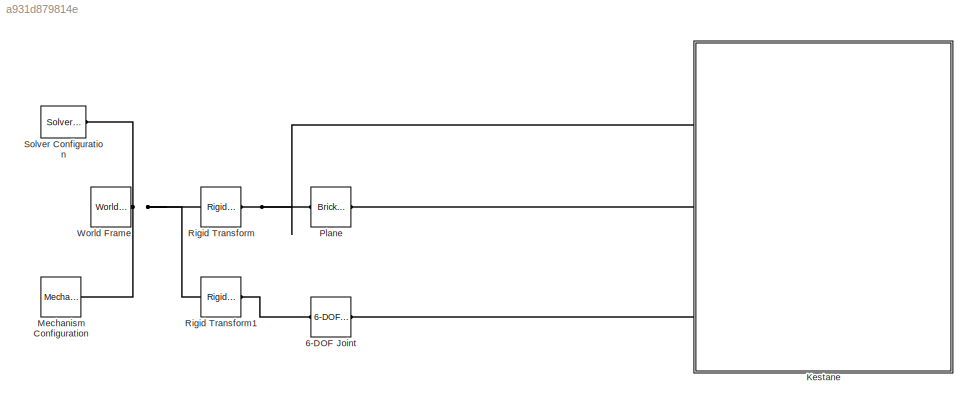
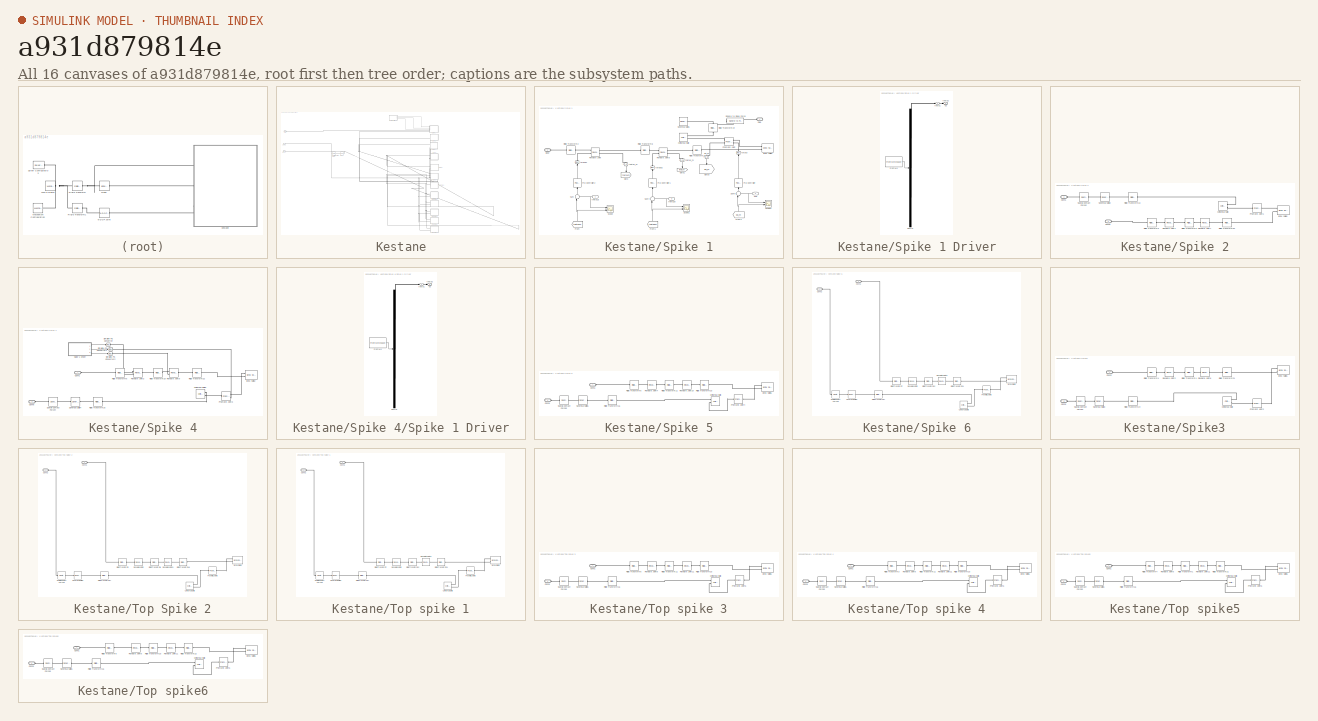
[diagram: thumbnail index - all 16 canvases of the model, root first then tree order]
MODEL slx_a931d879814e
KIND model
CONFIG AbsTol = auto
CONFIG EnableMultiTasking = off
CONFIG FixedStep = auto
CONFIG MaxStep = auto
CONFIG MinStep = auto
CONFIG RelTol = 1e-3
CONFIG SampleTimeConstraint = Unconstrained
CONFIG SolverName = VariableStepAuto
CONFIG StartTime = 0.0
CONFIG StopTime = 70
BLOCK [Reference] 6-DOF Joint  REF=sm_lib/Joints/6-DOF Joint
  Ports = [0, 0, 0, 0, 0, 1, 1]
  SourceBlock = sm_lib/Joints/6-DOF Joint
  SourceProductBaseCode = MS
  SourceType = 6-DOF Joint
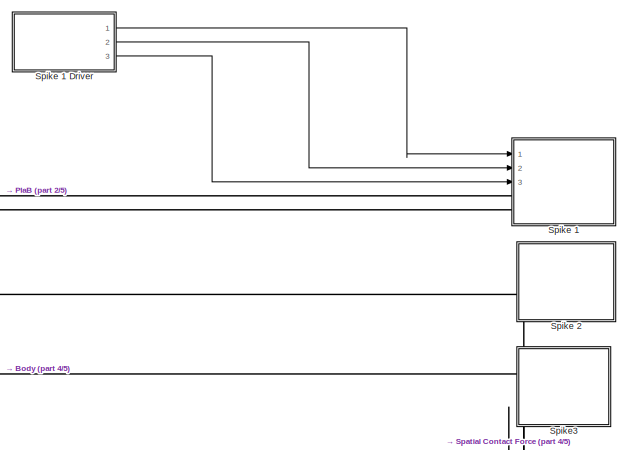
[diagram: Kestane - part 1/5, top center region]
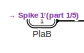
[diagram: Kestane - part 2/5, top left region]
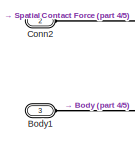
[diagram: Kestane - part 3/5, top left region]
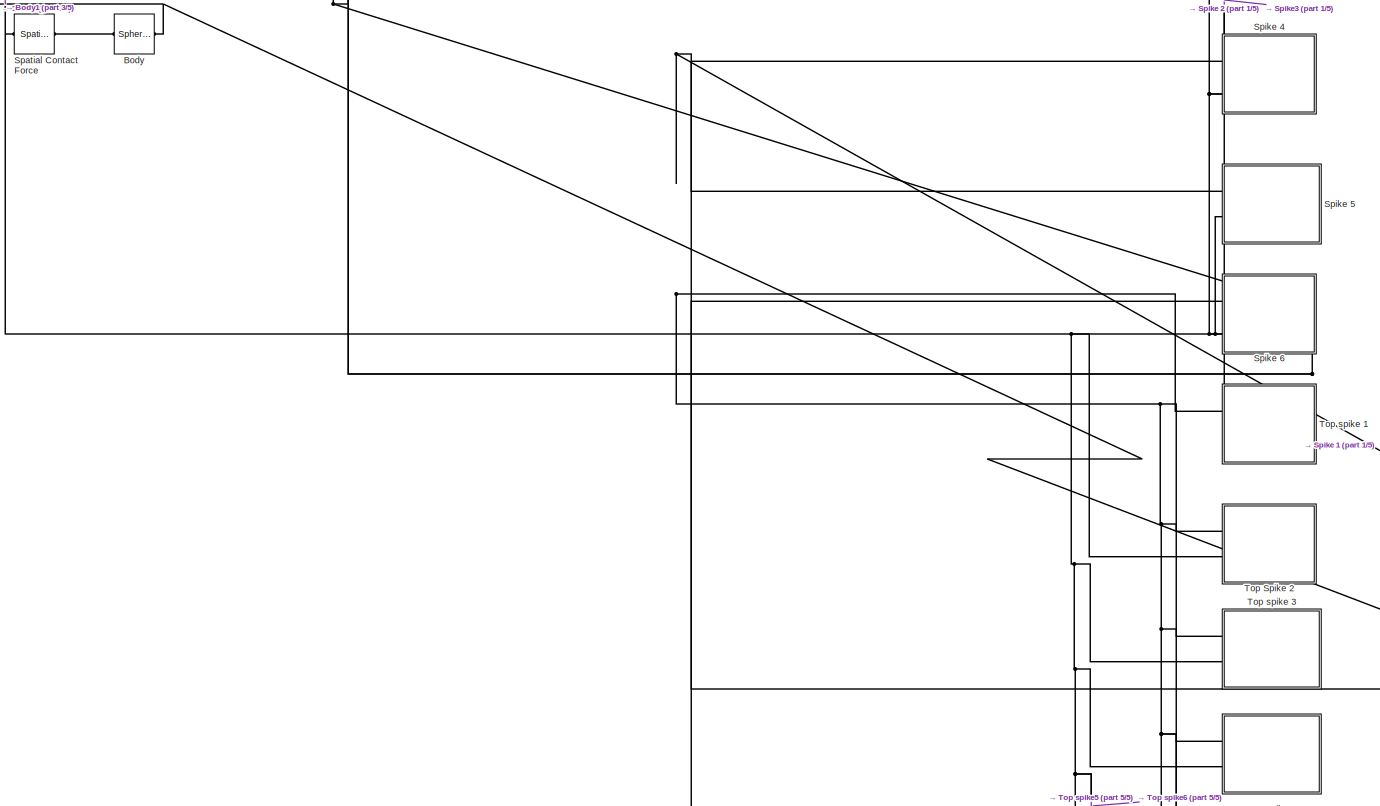
[diagram: Kestane - part 4/5, central region]
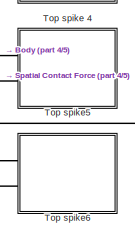
[diagram: Kestane - part 5/5, bottom center region]
BLOCK [SubSystem] Kestane
  Ports = [0, 0, 0, 0, 0, 3]
  RequestExecContextInheritance = off
BLOCK [Reference] Kestane/Body  REF=sm_lib/Body Elements/Spherical Solid
  Ports = [0, 0, 0, 0, 0, 1, 1]
  SourceBlock = sm_lib/Body Elements/Spherical Solid
  SourceProductBaseCode = MS
  SourceType = Spherical Solid
BLOCK [PMIOPort] Kestane/Body1
  Port = 3
  Side = Left
BLOCK [PMIOPort] Kestane/Conn2
  Port = 2
  Side = Left
BLOCK [PMIOPort] Kestane/PlaB
  Side = Left
BLOCK [Reference] Kestane/Spatial Contact Force  REF=sm_lib/Forces and
Torques/Spatial
Contact Force
  Ports = [0, 0, 0, 0, 0, 1, 1]
  SourceBlock = sm_lib/Forces and\nTorques/Spatial\nContact Force
  SourceProductBaseCode = MS
  SourceType = Spatial\nContact Force
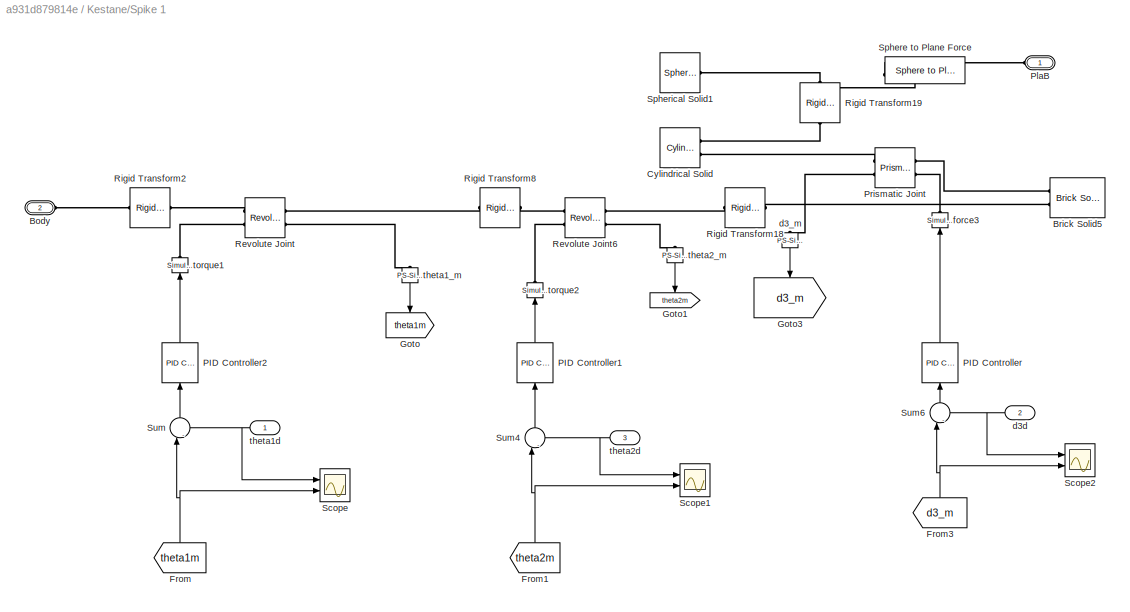
BLOCK [SubSystem] Kestane/Spike 1
  Ports = [3, 0, 0, 0, 0, 2]
  RequestExecContextInheritance = off
BLOCK [SubSystem] Kestane/Spike 1 Driver
  ClipboardFcn = sigbuilder_block('clipboard');
  CloseFcn = sigbuilder_block('close');
  ContinueFcn = sigbuilder_block('continue');
  CopyFcn = sigbuilder_block('copy');
  DeleteFcn = sigbuilder_block('delete');
  LoadFcn = sigbuilder_block('load');
  MaskHideContents = on
  ModelCloseFcn = sigbuilder_block('modelClose');
  NameChangeFcn = sigbuilder_block('namechange');
  OpenFcn = sigbuilder_block('open',[5.4 17.4 1141.2 522.6 ]);
  PauseFcn = sigbuilder_block('pause');
  Ports = [0, 3]
  PreSaveFcn = sigbuilder_block('preSave');
  RequestExecContextInheritance = off
  StartFcn = sigbuilder_block('start');
  StopFcn = sigbuilder_block('stop');
  Tag = STV Subsys
BLOCK [Demux] Kestane/Spike 1 Driver/Demux
  DisplayOption = none
  Outputs = 3
  Ports = [1, 3]
  Tag = STV Demux
BLOCK [FromWorkspace] Kestane/Spike 1 Driver/FromWs
  Tag = STV FromWs
  VariableName = tuvar
BLOCK [Outport] Kestane/Spike 1 Driver/d3
  Port = 2
  Tag = STV Outport
BLOCK [Outport] Kestane/Spike 1 Driver/theta1
  Tag = STV Outport
BLOCK [Outport] Kestane/Spike 1 Driver/theta2
  Port = 3
  Tag = STV Outport
BLOCK [PMIOPort] Kestane/Spike 1/Body
  Port = 2
  Side = Left
BLOCK [Reference] Kestane/Spike 1/Brick Solid5  REF=sm_lib/Body Elements/Brick Solid
  Ports = [0, 0, 0, 0, 0, 2, 2]
  SourceBlock = sm_lib/Body Elements/Brick Solid
  SourceProductBaseCode = MS
  SourceType = Brick Solid
BLOCK [Reference] Kestane/Spike 1/Cylindrical Solid  REF=sm_lib/Body Elements/Cylindrical Solid
  NameLocation = top
  Ports = [0, 0, 0, 0, 0, 2, 2]
  SourceBlock = sm_lib/Body Elements/Cylindrical Solid
  SourceProductBaseCode = MS
  SourceType = Cylindrical Solid
BLOCK [From] Kestane/Spike 1/From
  GotoTag = theta1m
  NameLocation = right
BLOCK [From] Kestane/Spike 1/From1
  GotoTag = theta2m
  NameLocation = right
BLOCK [From] Kestane/Spike 1/From3
  GotoTag = d3_m
  NameLocation = right
BLOCK [Goto] Kestane/Spike 1/Goto
  GotoTag = theta1m
  NameLocation = left
BLOCK [Goto] Kestane/Spike 1/Goto1
  GotoTag = theta2m
  NameLocation = left
BLOCK [Goto] Kestane/Spike 1/Goto3
  GotoTag = d3_m
  NameLocation = left
BLOCK [Reference] Kestane/Spike 1/PID Controller  REF=slpidlib/PID Controller
  NameLocation = right
  Ports = [1, 1]
  SourceBlock = slpidlib/PID Controller
  SourceProductBaseCode = SL
  SourceType = PID 1dof
BLOCK [Reference] Kestane/Spike 1/PID Controller1  REF=slpidlib/PID Controller
  NameLocation = right
  Ports = [1, 1]
  SourceBlock = slpidlib/PID Controller
  SourceProductBaseCode = SL
  SourceType = PID 1dof
BLOCK [Reference] Kestane/Spike 1/PID Controller2  REF=slpidlib/PID Controller
  NameLocation = right
  Ports = [1, 1]
  SourceBlock = slpidlib/PID Controller
  SourceProductBaseCode = SL
  SourceType = PID 1dof
BLOCK [PMIOPort] Kestane/Spike 1/PlaB
  Side = Left
BLOCK [Reference] Kestane/Spike 1/Prismatic Joint  REF=sm_lib/Joints/Prismatic
Joint
  NameLocation = top
  Ports = [0, 0, 0, 0, 0, 2, 2]
  SourceBlock = sm_lib/Joints/Prismatic\nJoint
  SourceProductBaseCode = MS
  SourceType = Prismatic\nJoint
BLOCK [Reference] Kestane/Spike 1/Revolute Joint  REF=sm_lib/Joints/Revolute Joint
  Ports = [0, 0, 0, 0, 0, 2, 2]
  SourceBlock = sm_lib/Joints/Revolute Joint
  SourceProductBaseCode = MS
  SourceType = Revolute Joint
BLOCK [Reference] Kestane/Spike 1/Revolute Joint6  REF=sm_lib/Joints/Revolute Joint
  Ports = [0, 0, 0, 0, 0, 2, 2]
  SourceBlock = sm_lib/Joints/Revolute Joint
  SourceProductBaseCode = MS
  SourceType = Revolute Joint
BLOCK [Reference] Kestane/Spike 1/Rigid Transform18  REF=sm_lib/Frames and
Transforms/Rigid
Transform
  Ports = [0, 0, 0, 0, 0, 1, 1]
  SourceBlock = sm_lib/Frames and\nTransforms/Rigid\nTransform
  SourceProductBaseCode = MS
  SourceType = Rigid\nTransform
BLOCK [Reference] Kestane/Spike 1/Rigid Transform19  REF=sm_lib/Frames and
Transforms/Rigid
Transform
  NameLocation = right
  Ports = [0, 0, 0, 0, 0, 1, 1]
  SourceBlock = sm_lib/Frames and\nTransforms/Rigid\nTransform
  SourceProductBaseCode = MS
  SourceType = Rigid\nTransform
BLOCK [Reference] Kestane/Spike 1/Rigid Transform2  REF=sm_lib/Frames and
Transforms/Rigid
Transform
  Ports = [0, 0, 0, 0, 0, 1, 1]
  SourceBlock = sm_lib/Frames and\nTransforms/Rigid\nTransform
  SourceProductBaseCode = MS
  SourceType = Rigid\nTransform
BLOCK [Reference] Kestane/Spike 1/Rigid Transform8  REF=sm_lib/Frames and
Transforms/Rigid
Transform
  Ports = [0, 0, 0, 0, 0, 1, 1]
  SourceBlock = sm_lib/Frames and\nTransforms/Rigid\nTransform
  SourceProductBaseCode = MS
  SourceType = Rigid\nTransform
BLOCK [Scope] Kestane/Spike 1/Scope
  Floating = off
  NumInputPorts = 2
  Ports = [2]
  ScopeSpecificationString = Simulink.scopes.TimeScopeBlockCfg('CurrentConfiguration', extmgr.ConfigurationSet(extmgr.Configuration('Core','General UI',true),extmgr.Configuration('Core','Source UI',true),extmgr.Configuration('Sources','WiredSimulink',true),extmgr.Configuration('Visuals','Time Domain',true,'SerializedDisplays',{struct('MinYLimReal','0.21657','MaxYLimReal','0.66446','YLabelReal','','MinYLimMag','0.21657','MaxYL...<+1363ch>
BLOCK [Scope] Kestane/Spike 1/Scope1
  Floating = off
  NumInputPorts = 2
  Ports = [2]
  ScopeSpecificationString = Simulink.scopes.TimeScopeBlockCfg('CurrentConfiguration', extmgr.ConfigurationSet(extmgr.Configuration('Core','General UI',true),extmgr.Configuration('Core','Source UI',true),extmgr.Configuration('Sources','WiredSimulink',true,'DataLoggingVariableName','ScopeData1'),extmgr.Configuration('Visuals','Time Domain',true,'SerializedDisplays',{struct('MinYLimReal','1.35797','MaxYLimReal','1.77753','YLabe...<+1431ch>
BLOCK [Scope] Kestane/Spike 1/Scope2
  Floating = off
  NumInputPorts = 2
  Ports = [2]
  ScopeSpecificationString = Simulink.scopes.TimeScopeBlockCfg('CurrentConfiguration', extmgr.ConfigurationSet(extmgr.Configuration('Core','General UI',true),extmgr.Configuration('Core','Source UI',true),extmgr.Configuration('Sources','WiredSimulink',true,'DataLoggingVariableName','ScopeData2'),extmgr.Configuration('Visuals','Time Domain',true,'SerializedDisplays',{struct('MinYLimReal','0.00731','MaxYLimReal','0.02141','YLabe...<+1419ch>
BLOCK [Reference] Kestane/Spike 1/Sphere to Plane Force  REF=Contact_Forces_Lib/3D/Sphere to Plane Force
  NameLocation = top
  Ports = [0, 1, 0, 0, 0, 1, 1]
  SourceBlock = Contact_Forces_Lib/3D/Sphere to Plane Force
  SourceProductName = Simscape Multibody Contact Forces Library
  SourceType = Sphere to Plane Force
BLOCK [Reference] Kestane/Spike 1/Spherical Solid1  REF=sm_lib/Body Elements/Spherical Solid
  Ports = [0, 0, 0, 0, 0, 1, 1]
  SourceBlock = sm_lib/Body Elements/Spherical Solid
  SourceProductBaseCode = MS
  SourceType = Spherical Solid
BLOCK [Sum] Kestane/Spike 1/Sum
  Inputs = |-+
  NameLocation = right
  Ports = [2, 1]
BLOCK [Sum] Kestane/Spike 1/Sum4
  Inputs = |-+
  NameLocation = right
  Ports = [2, 1]
BLOCK [Sum] Kestane/Spike 1/Sum6
  Inputs = |-+
  NameLocation = right
  Ports = [2, 1]
BLOCK [Reference] Kestane/Spike 1/d3_m  REF=nesl_utility/PS-Simulink
Converter
  NameLocation = left
  Ports = [0, 1, 0, 0, 0, 1]
  SourceBlock = nesl_utility/PS-Simulink\nConverter
  SourceProductBaseCode = PW,SS
  SourceType = PS-Simulink\nConverter
BLOCK [Inport] Kestane/Spike 1/d3d
  NameLocation = top
  Port = 2
BLOCK [Reference] Kestane/Spike 1/force3  REF=nesl_utility/Simulink-PS
Converter
  NameLocation = right
  Ports = [1, 0, 0, 0, 0, 0, 1]
  SourceBlock = nesl_utility/Simulink-PS\nConverter
  SourceProductBaseCode = PW,SS
  SourceType = Simulink-PS\nConverter
BLOCK [Reference] Kestane/Spike 1/theta1_m  REF=nesl_utility/PS-Simulink
Converter
  NameLocation = left
  Ports = [0, 1, 0, 0, 0, 1]
  SourceBlock = nesl_utility/PS-Simulink\nConverter
  SourceProductBaseCode = PW,SS
  SourceType = PS-Simulink\nConverter
BLOCK [Inport] Kestane/Spike 1/theta1d
  NameLocation = top
BLOCK [Reference] Kestane/Spike 1/theta2_m  REF=nesl_utility/PS-Simulink
Converter
  NameLocation = left
  Ports = [0, 1, 0, 0, 0, 1]
  SourceBlock = nesl_utility/PS-Simulink\nConverter
  SourceProductBaseCode = PW,SS
  SourceType = PS-Simulink\nConverter
BLOCK [Inport] Kestane/Spike 1/theta2d
  NameLocation = top
  Port = 3
BLOCK [Reference] Kestane/Spike 1/torque1  REF=nesl_utility/Simulink-PS
Converter
  NameLocation = right
  Ports = [1, 0, 0, 0, 0, 0, 1]
  SourceBlock = nesl_utility/Simulink-PS\nConverter
  SourceProductBaseCode = PW,SS
  SourceType = Simulink-PS\nConverter
BLOCK [Reference] Kestane/Spike 1/torque2  REF=nesl_utility/Simulink-PS
Converter
  NameLocation = right
  Ports = [1, 0, 0, 0, 0, 0, 1]
  SourceBlock = nesl_utility/Simulink-PS\nConverter
  SourceProductBaseCode = PW,SS
  SourceType = Simulink-PS\nConverter
BLOCK [SubSystem] Kestane/Spike 2
  Ports = [0, 0, 0, 0, 0, 2]
  RequestExecContextInheritance = off
BLOCK [Reference] Kestane/Spike 2/Brick Solid5  REF=sm_lib/Body Elements/Brick Solid
  Ports = [0, 0, 0, 0, 0, 2, 2]
  SourceBlock = sm_lib/Body Elements/Brick Solid
  SourceProductBaseCode = MS
  SourceType = Brick Solid
BLOCK [PMIOPort] Kestane/Spike 2/Conn1
  Side = Left
BLOCK [PMIOPort] Kestane/Spike 2/Conn6
  Port = 2
  Side = Left
BLOCK [Reference] Kestane/Spike 2/Cylindrical Solid  REF=sm_lib/Body Elements/Cylindrical Solid
  NameLocation = top
  Ports = [0, 0, 0, 0, 0, 2, 2]
  SourceBlock = sm_lib/Body Elements/Cylindrical Solid
  SourceProductBaseCode = MS
  SourceType = Cylindrical Solid
BLOCK [Reference] Kestane/Spike 2/Prismatic Joint1  REF=sm_lib/Joints/Prismatic
Joint
  NameLocation = top
  Ports = [0, 0, 0, 0, 0, 1, 1]
  SourceBlock = sm_lib/Joints/Prismatic\nJoint
  SourceProductBaseCode = MS
  SourceType = Prismatic\nJoint
BLOCK [Reference] Kestane/Spike 2/Revolute Joint1  REF=sm_lib/Joints/Revolute Joint
  Ports = [0, 0, 0, 0, 0, 1, 1]
  SourceBlock = sm_lib/Joints/Revolute Joint
  SourceProductBaseCode = MS
  SourceType = Revolute Joint
BLOCK [Reference] Kestane/Spike 2/Revolute Joint7  REF=sm_lib/Joints/Revolute Joint
  Ports = [0, 0, 0, 0, 0, 1, 1]
  SourceBlock = sm_lib/Joints/Revolute Joint
  SourceProductBaseCode = MS
  SourceType = Revolute Joint
BLOCK [Reference] Kestane/Spike 2/Rigid Transform13  REF=sm_lib/Frames and
Transforms/Rigid
Transform
  NameLocation = top
  Ports = [0, 0, 0, 0, 0, 1, 1]
  SourceBlock = sm_lib/Frames and\nTransforms/Rigid\nTransform
  SourceProductBaseCode = MS
  SourceType = Rigid\nTransform
BLOCK [Reference] Kestane/Spike 2/Rigid Transform20  REF=sm_lib/Frames and
Transforms/Rigid
Transform
  Ports = [0, 0, 0, 0, 0, 1, 1]
  SourceBlock = sm_lib/Frames and\nTransforms/Rigid\nTransform
  SourceProductBaseCode = MS
  SourceType = Rigid\nTransform
BLOCK [Reference] Kestane/Spike 2/Rigid Transform3  REF=sm_lib/Frames and
Transforms/Rigid
Transform
  Ports = [0, 0, 0, 0, 0, 1, 1]
  SourceBlock = sm_lib/Frames and\nTransforms/Rigid\nTransform
  SourceProductBaseCode = MS
  SourceType = Rigid\nTransform
BLOCK [Reference] Kestane/Spike 2/Rigid Transform9  REF=sm_lib/Frames and
Transforms/Rigid
Transform
  Ports = [0, 0, 0, 0, 0, 1, 1]
  SourceBlock = sm_lib/Frames and\nTransforms/Rigid\nTransform
  SourceProductBaseCode = MS
  SourceType = Rigid\nTransform
BLOCK [Reference] Kestane/Spike 2/Spatial Contact Force2  REF=sm_lib/Forces and
Torques/Spatial
Contact Force
  Ports = [0, 0, 0, 0, 0, 1, 1]
  SourceBlock = sm_lib/Forces and\nTorques/Spatial\nContact Force
  SourceProductBaseCode = MS
  SourceType = Spatial\nContact Force
BLOCK [Reference] Kestane/Spike 2/Spherical Solid2  REF=sm_lib/Body Elements/Spherical Solid
  Ports = [0, 0, 0, 0, 0, 1, 1]
  SourceBlock = sm_lib/Body Elements/Spherical Solid
  SourceProductBaseCode = MS
  SourceType = Spherical Solid
BLOCK [SubSystem] Kestane/Spike 4
  Ports = [0, 0, 0, 0, 0, 2]
  RequestExecContextInheritance = off
BLOCK [Reference] Kestane/Spike 4/Brick Solid2  REF=sm_lib/Body Elements/Brick Solid
  Ports = [0, 0, 0, 0, 0, 2, 2]
  SourceBlock = sm_lib/Body Elements/Brick Solid
  SourceProductBaseCode = MS
  SourceType = Brick Solid
BLOCK [PMIOPort] Kestane/Spike 4/Conn1
  Side = Left
BLOCK [PMIOPort] Kestane/Spike 4/Conn6
  Port = 2
  Side = Left
BLOCK [Reference] Kestane/Spike 4/Cylindrical Solid3  REF=sm_lib/Body Elements/Cylindrical Solid
  NameLocation = top
  Ports = [0, 0, 0, 0, 0, 2, 2]
  SourceBlock = sm_lib/Body Elements/Cylindrical Solid
  SourceProductBaseCode = MS
  SourceType = Cylindrical Solid
BLOCK [Reference] Kestane/Spike 4/Prismatic Joint3  REF=sm_lib/Joints/Prismatic
Joint
  NameLocation = top
  Ports = [0, 0, 0, 0, 0, 2, 1]
  SourceBlock = sm_lib/Joints/Prismatic\nJoint
  SourceProductBaseCode = MS
  SourceType = Prismatic\nJoint
BLOCK [Reference] Kestane/Spike 4/Revolute Joint3  REF=sm_lib/Joints/Revolute Joint
  Ports = [0, 0, 0, 0, 0, 2, 1]
  SourceBlock = sm_lib/Joints/Revolute Joint
  SourceProductBaseCode = MS
  SourceType = Revolute Joint
BLOCK [Reference] Kestane/Spike 4/Revolute Joint9  REF=sm_lib/Joints/Revolute Joint
  Ports = [0, 0, 0, 0, 0, 2, 1]
  SourceBlock = sm_lib/Joints/Revolute Joint
  SourceProductBaseCode = MS
  SourceType = Revolute Joint
BLOCK [Reference] Kestane/Spike 4/Rigid Transform10  REF=sm_lib/Frames and
Transforms/Rigid
Transform
  Ports = [0, 0, 0, 0, 0, 1, 1]
  SourceBlock = sm_lib/Frames and\nTransforms/Rigid\nTransform
  SourceProductBaseCode = MS
  SourceType = Rigid\nTransform
BLOCK [Reference] Kestane/Spike 4/Rigid Transform15  REF=sm_lib/Frames and
Transforms/Rigid
Transform
  NameLocation = top
  Ports = [0, 0, 0, 0, 0, 1, 1]
  SourceBlock = sm_lib/Frames and\nTransforms/Rigid\nTransform
  SourceProductBaseCode = MS
  SourceType = Rigid\nTransform
BLOCK [Reference] Kestane/Spike 4/Rigid Transform22  REF=sm_lib/Frames and
Transforms/Rigid
Transform
  Ports = [0, 0, 0, 0, 0, 1, 1]
  SourceBlock = sm_lib/Frames and\nTransforms/Rigid\nTransform
  SourceProductBaseCode = MS
  SourceType = Rigid\nTransform
BLOCK [Reference] Kestane/Spike 4/Rigid Transform5  REF=sm_lib/Frames and
Transforms/Rigid
Transform
  Ports = [0, 0, 0, 0, 0, 1, 1]
  SourceBlock = sm_lib/Frames and\nTransforms/Rigid\nTransform
  SourceProductBaseCode = MS
  SourceType = Rigid\nTransform
BLOCK [Reference] Kestane/Spike 4/Simulink-PS Converter  REF=nesl_utility/Simulink-PS
Converter
  Ports = [1, 0, 0, 0, 0, 0, 1]
  SourceBlock = nesl_utility/Simulink-PS\nConverter
  SourceProductBaseCode = PW,SS
  SourceType = Simulink-PS\nConverter
BLOCK [Reference] Kestane/Spike 4/Simulink-PS Converter1  REF=nesl_utility/Simulink-PS
Converter
  Ports = [1, 0, 0, 0, 0, 0, 1]
  SourceBlock = nesl_utility/Simulink-PS\nConverter
  SourceProductBaseCode = PW,SS
  SourceType = Simulink-PS\nConverter
BLOCK [Reference] Kestane/Spike 4/Simulink-PS Converter2  REF=nesl_utility/Simulink-PS
Converter
  Ports = [1, 0, 0, 0, 0, 0, 1]
  SourceBlock = nesl_utility/Simulink-PS\nConverter
  SourceProductBaseCode = PW,SS
  SourceType = Simulink-PS\nConverter
BLOCK [Reference] Kestane/Spike 4/Spatial Contact Force4  REF=sm_lib/Forces and
Torques/Spatial
Contact Force
  Ports = [0, 0, 0, 0, 0, 1, 1]
  SourceBlock = sm_lib/Forces and\nTorques/Spatial\nContact Force
  SourceProductBaseCode = MS
  SourceType = Spatial\nContact Force
BLOCK [Reference] Kestane/Spike 4/Spherical Solid4  REF=sm_lib/Body Elements/Spherical Solid
  Ports = [0, 0, 0, 0, 0, 1, 1]
  SourceBlock = sm_lib/Body Elements/Spherical Solid
  SourceProductBaseCode = MS
  SourceType = Spherical Solid
BLOCK [SubSystem] Kestane/Spike 4/Spike 1 Driver
  ClipboardFcn = sigbuilder_block('clipboard');
  CloseFcn = sigbuilder_block('close');
  ContinueFcn = sigbuilder_block('continue');
  CopyFcn = sigbuilder_block('copy');
  DeleteFcn = sigbuilder_block('delete');
  LoadFcn = sigbuilder_block('load');
  MaskHideContents = on
  ModelCloseFcn = sigbuilder_block('modelClose');
  NameChangeFcn = sigbuilder_block('namechange');
  OpenFcn = sigbuilder_block('open',[5.4 30.6 1141.2 555.6 ]);
  PauseFcn = sigbuilder_block('pause');
  Ports = [0, 3]
  PreSaveFcn = sigbuilder_block('preSave');
  RequestExecContextInheritance = off
  StartFcn = sigbuilder_block('start');
  StopFcn = sigbuilder_block('stop');
  Tag = STV Subsys
BLOCK [Demux] Kestane/Spike 4/Spike 1 Driver/Demux
  DisplayOption = none
  Outputs = 3
  Ports = [1, 3]
  Tag = STV Demux
BLOCK [FromWorkspace] Kestane/Spike 4/Spike 1 Driver/FromWs
  Tag = STV FromWs
  VariableName = tuvar
BLOCK [Outport] Kestane/Spike 4/Spike 1 Driver/d3
  Port = 2
  Tag = STV Outport
BLOCK [Outport] Kestane/Spike 4/Spike 1 Driver/theta1
  Tag = STV Outport
BLOCK [Outport] Kestane/Spike 4/Spike 1 Driver/theta2
  Port = 3
  Tag = STV Outport
BLOCK [SubSystem] Kestane/Spike 5
  Ports = [0, 0, 0, 0, 0, 2]
  RequestExecContextInheritance = off
BLOCK [Reference] Kestane/Spike 5/Brick Solid5  REF=sm_lib/Body Elements/Brick Solid
  Ports = [0, 0, 0, 0, 0, 2, 2]
  SourceBlock = sm_lib/Body Elements/Brick Solid
  SourceProductBaseCode = MS
  SourceType = Brick Solid
BLOCK [PMIOPort] Kestane/Spike 5/Conn1
  Side = Left
BLOCK [PMIOPort] Kestane/Spike 5/Conn5
  Port = 2
  Side = Left
BLOCK [Reference] Kestane/Spike 5/Cylindrical Solid  REF=sm_lib/Body Elements/Cylindrical Solid
  Ports = [0, 0, 0, 0, 0, 2, 2]
  SourceBlock = sm_lib/Body Elements/Cylindrical Solid
  SourceProductBaseCode = MS
  SourceType = Cylindrical Solid
BLOCK [Reference] Kestane/Spike 5/Prismatic Joint4  REF=sm_lib/Joints/Prismatic
Joint
  NameLocation = top
  Ports = [0, 0, 0, 0, 0, 1, 1]
  SourceBlock = sm_lib/Joints/Prismatic\nJoint
  SourceProductBaseCode = MS
  SourceType = Prismatic\nJoint
BLOCK [Reference] Kestane/Spike 5/Revolute Joint10  REF=sm_lib/Joints/Revolute Joint
  Ports = [0, 0, 0, 0, 0, 1, 1]
  SourceBlock = sm_lib/Joints/Revolute Joint
  SourceProductBaseCode = MS
  SourceType = Revolute Joint
BLOCK [Reference] Kestane/Spike 5/Revolute Joint4  REF=sm_lib/Joints/Revolute Joint
  Ports = [0, 0, 0, 0, 0, 1, 1]
  SourceBlock = sm_lib/Joints/Revolute Joint
  SourceProductBaseCode = MS
  SourceType = Revolute Joint
BLOCK [Reference] Kestane/Spike 5/Rigid Transform11  REF=sm_lib/Frames and
Transforms/Rigid
Transform
  Ports = [0, 0, 0, 0, 0, 1, 1]
  SourceBlock = sm_lib/Frames and\nTransforms/Rigid\nTransform
  SourceProductBaseCode = MS
  SourceType = Rigid\nTransform
BLOCK [Reference] Kestane/Spike 5/Rigid Transform16  REF=sm_lib/Frames and
Transforms/Rigid
Transform
  NameLocation = top
  Ports = [0, 0, 0, 0, 0, 1, 1]
  SourceBlock = sm_lib/Frames and\nTransforms/Rigid\nTransform
  SourceProductBaseCode = MS
  SourceType = Rigid\nTransform
BLOCK [Reference] Kestane/Spike 5/Rigid Transform23  REF=sm_lib/Frames and
Transforms/Rigid
Transform
  Ports = [0, 0, 0, 0, 0, 1, 1]
  SourceBlock = sm_lib/Frames and\nTransforms/Rigid\nTransform
  SourceProductBaseCode = MS
  SourceType = Rigid\nTransform
BLOCK [Reference] Kestane/Spike 5/Rigid Transform6  REF=sm_lib/Frames and
Transforms/Rigid
Transform
  Ports = [0, 0, 0, 0, 0, 1, 1]
  SourceBlock = sm_lib/Frames and\nTransforms/Rigid\nTransform
  SourceProductBaseCode = MS
  SourceType = Rigid\nTransform
BLOCK [Reference] Kestane/Spike 5/Spatial Contact Force5  REF=sm_lib/Forces and
Torques/Spatial
Contact Force
  Ports = [0, 0, 0, 0, 0, 1, 1]
  SourceBlock = sm_lib/Forces and\nTorques/Spatial\nContact Force
  SourceProductBaseCode = MS
  SourceType = Spatial\nContact Force
BLOCK [Reference] Kestane/Spike 5/Spherical Solid5  REF=sm_lib/Body Elements/Spherical Solid
  Ports = [0, 0, 0, 0, 0, 1, 1]
  SourceBlock = sm_lib/Body Elements/Spherical Solid
  SourceProductBaseCode = MS
  SourceType = Spherical Solid
BLOCK [SubSystem] Kestane/Spike 6
  Ports = [0, 0, 0, 0, 0, 2]
  RequestExecContextInheritance = off
BLOCK [Reference] Kestane/Spike 6/Brick Solid5  REF=sm_lib/Body Elements/Brick Solid
  Ports = [0, 0, 0, 0, 0, 2, 2]
  SourceBlock = sm_lib/Body Elements/Brick Solid
  SourceProductBaseCode = MS
  SourceType = Brick Solid
BLOCK [PMIOPort] Kestane/Spike 6/Conn1
  Side = Left
BLOCK [PMIOPort] Kestane/Spike 6/Conn2
  Port = 2
  Side = Left
BLOCK [Reference] Kestane/Spike 6/Cylindrical Solid  REF=sm_lib/Body Elements/Cylindrical Solid
  NameLocation = top
  Ports = [0, 0, 0, 0, 0, 2, 2]
  SourceBlock = sm_lib/Body Elements/Cylindrical Solid
  SourceProductBaseCode = MS
  SourceType = Cylindrical Solid
BLOCK [Reference] Kestane/Spike 6/Prismatic Joint5  REF=sm_lib/Joints/Prismatic
Joint
  NameLocation = top
  Ports = [0, 0, 0, 0, 0, 1, 1]
  SourceBlock = sm_lib/Joints/Prismatic\nJoint
  SourceProductBaseCode = MS
  SourceType = Prismatic\nJoint
BLOCK [Reference] Kestane/Spike 6/Revolute Joint11  REF=sm_lib/Joints/Revolute Joint
  Ports = [0, 0, 0, 0, 0, 1, 1]
  SourceBlock = sm_lib/Joints/Revolute Joint
  SourceProductBaseCode = MS
  SourceType = Revolute Joint
BLOCK [Reference] Kestane/Spike 6/Revolute Joint5  REF=sm_lib/Joints/Revolute Joint
  Ports = [0, 0, 0, 0, 0, 1, 1]
  SourceBlock = sm_lib/Joints/Revolute Joint
  SourceProductBaseCode = MS
  SourceType = Revolute Joint
BLOCK [Reference] Kestane/Spike 6/Rigid Transform12  REF=sm_lib/Frames and
Transforms/Rigid
Transform
  Ports = [0, 0, 0, 0, 0, 1, 1]
  SourceBlock = sm_lib/Frames and\nTransforms/Rigid\nTransform
  SourceProductBaseCode = MS
  SourceType = Rigid\nTransform
BLOCK [Reference] Kestane/Spike 6/Rigid Transform17  REF=sm_lib/Frames and
Transforms/Rigid
Transform
  NameLocation = top
  Ports = [0, 0, 0, 0, 0, 1, 1]
  SourceBlock = sm_lib/Frames and\nTransforms/Rigid\nTransform
  SourceProductBaseCode = MS
  SourceType = Rigid\nTransform
BLOCK [Reference] Kestane/Spike 6/Rigid Transform24  REF=sm_lib/Frames and
Transforms/Rigid
Transform
  Ports = [0, 0, 0, 0, 0, 1, 1]
  SourceBlock = sm_lib/Frames and\nTransforms/Rigid\nTransform
  SourceProductBaseCode = MS
  SourceType = Rigid\nTransform
BLOCK [Reference] Kestane/Spike 6/Rigid Transform7  REF=sm_lib/Frames and
Transforms/Rigid
Transform
  Ports = [0, 0, 0, 0, 0, 1, 1]
  SourceBlock = sm_lib/Frames and\nTransforms/Rigid\nTransform
  SourceProductBaseCode = MS
  SourceType = Rigid\nTransform
BLOCK [Reference] Kestane/Spike 6/Spatial Contact Force6  REF=sm_lib/Forces and
Torques/Spatial
Contact Force
  Ports = [0, 0, 0, 0, 0, 1, 1]
  SourceBlock = sm_lib/Forces and\nTorques/Spatial\nContact Force
  SourceProductBaseCode = MS
  SourceType = Spatial\nContact Force
BLOCK [Reference] Kestane/Spike 6/Spherical Solid6  REF=sm_lib/Body Elements/Spherical Solid
  Ports = [0, 0, 0, 0, 0, 1, 1]
  SourceBlock = sm_lib/Body Elements/Spherical Solid
  SourceProductBaseCode = MS
  SourceType = Spherical Solid
BLOCK [SubSystem] Kestane/Spike3
  Ports = [0, 0, 0, 0, 0, 2]
  RequestExecContextInheritance = off
BLOCK [Reference] Kestane/Spike3/Brick Solid5  REF=sm_lib/Body Elements/Brick Solid
  Ports = [0, 0, 0, 0, 0, 2, 2]
  SourceBlock = sm_lib/Body Elements/Brick Solid
  SourceProductBaseCode = MS
  SourceType = Brick Solid
BLOCK [PMIOPort] Kestane/Spike3/Conn2
  Side = Left
BLOCK [PMIOPort] Kestane/Spike3/Conn5
  Port = 2
  Side = Left
BLOCK [Reference] Kestane/Spike3/Cylindrical Solid  REF=sm_lib/Body Elements/Cylindrical Solid
  NameLocation = top
  Ports = [0, 0, 0, 0, 0, 2, 2]
  SourceBlock = sm_lib/Body Elements/Cylindrical Solid
  SourceProductBaseCode = MS
  SourceType = Cylindrical Solid
BLOCK [Reference] Kestane/Spike3/Prismatic Joint2  REF=sm_lib/Joints/Prismatic
Joint
  NameLocation = top
  Ports = [0, 0, 0, 0, 0, 1, 1]
  SourceBlock = sm_lib/Joints/Prismatic\nJoint
  SourceProductBaseCode = MS
  SourceType = Prismatic\nJoint
BLOCK [Reference] Kestane/Spike3/Revolute Joint2  REF=sm_lib/Joints/Revolute Joint
  Ports = [0, 0, 0, 0, 0, 1, 1]
  SourceBlock = sm_lib/Joints/Revolute Joint
  SourceProductBaseCode = MS
  SourceType = Revolute Joint
BLOCK [Reference] Kestane/Spike3/Revolute Joint8  REF=sm_lib/Joints/Revolute Joint
  Ports = [0, 0, 0, 0, 0, 1, 1]
  SourceBlock = sm_lib/Joints/Revolute Joint
  SourceProductBaseCode = MS
  SourceType = Revolute Joint
BLOCK [Reference] Kestane/Spike3/Rigid Transform1  REF=sm_lib/Frames and
Transforms/Rigid
Transform
  Ports = [0, 0, 0, 0, 0, 1, 1]
  SourceBlock = sm_lib/Frames and\nTransforms/Rigid\nTransform
  SourceProductBaseCode = MS
  SourceType = Rigid\nTransform
BLOCK [Reference] Kestane/Spike3/Rigid Transform14  REF=sm_lib/Frames and
Transforms/Rigid
Transform
  NameLocation = top
  Ports = [0, 0, 0, 0, 0, 1, 1]
  SourceBlock = sm_lib/Frames and\nTransforms/Rigid\nTransform
  SourceProductBaseCode = MS
  SourceType = Rigid\nTransform
BLOCK [Reference] Kestane/Spike3/Rigid Transform21  REF=sm_lib/Frames and
Transforms/Rigid
Transform
  Ports = [0, 0, 0, 0, 0, 1, 1]
  SourceBlock = sm_lib/Frames and\nTransforms/Rigid\nTransform
  SourceProductBaseCode = MS
  SourceType = Rigid\nTransform
BLOCK [Reference] Kestane/Spike3/Rigid Transform4  REF=sm_lib/Frames and
Transforms/Rigid
Transform
  Ports = [0, 0, 0, 0, 0, 1, 1]
  SourceBlock = sm_lib/Frames and\nTransforms/Rigid\nTransform
  SourceProductBaseCode = MS
  SourceType = Rigid\nTransform
BLOCK [Reference] Kestane/Spike3/Spatial Contact Force3  REF=sm_lib/Forces and
Torques/Spatial
Contact Force
  Ports = [0, 0, 0, 0, 0, 1, 1]
  SourceBlock = sm_lib/Forces and\nTorques/Spatial\nContact Force
  SourceProductBaseCode = MS
  SourceType = Spatial\nContact Force
BLOCK [Reference] Kestane/Spike3/Spherical Solid3  REF=sm_lib/Body Elements/Spherical Solid
  Ports = [0, 0, 0, 0, 0, 1, 1]
  SourceBlock = sm_lib/Body Elements/Spherical Solid
  SourceProductBaseCode = MS
  SourceType = Spherical Solid
BLOCK [SubSystem] Kestane/Top Spike 2
  Ports = [0, 0, 0, 0, 0, 2]
  RequestExecContextInheritance = off
BLOCK [Reference] Kestane/Top Spike 2/Brick Solid5  REF=sm_lib/Body Elements/Brick Solid
  Ports = [0, 0, 0, 0, 0, 2, 2]
  SourceBlock = sm_lib/Body Elements/Brick Solid
  SourceProductBaseCode = MS
  SourceType = Brick Solid
BLOCK [PMIOPort] Kestane/Top Spike 2/Conn1
  Side = Left
BLOCK [PMIOPort] Kestane/Top Spike 2/Conn2
  Port = 2
  Side = Left
BLOCK [Reference] Kestane/Top Spike 2/Cylindrical Solid  REF=sm_lib/Body Elements/Cylindrical Solid
  NameLocation = top
  Ports = [0, 0, 0, 0, 0, 2, 2]
  SourceBlock = sm_lib/Body Elements/Cylindrical Solid
  SourceProductBaseCode = MS
  SourceType = Cylindrical Solid
BLOCK [Reference] Kestane/Top Spike 2/Prismatic Joint5  REF=sm_lib/Joints/Prismatic
Joint
  NameLocation = top
  Ports = [0, 0, 0, 0, 0, 1, 1]
  SourceBlock = sm_lib/Joints/Prismatic\nJoint
  SourceProductBaseCode = MS
  SourceType = Prismatic\nJoint
BLOCK [Reference] Kestane/Top Spike 2/Revolute Joint11  REF=sm_lib/Joints/Revolute Joint
  Ports = [0, 0, 0, 0, 0, 1, 1]
  SourceBlock = sm_lib/Joints/Revolute Joint
  SourceProductBaseCode = MS
  SourceType = Revolute Joint
BLOCK [Reference] Kestane/Top Spike 2/Revolute Joint5  REF=sm_lib/Joints/Revolute Joint
  Ports = [0, 0, 0, 0, 0, 1, 1]
  SourceBlock = sm_lib/Joints/Revolute Joint
  SourceProductBaseCode = MS
  SourceType = Revolute Joint
BLOCK [Reference] Kestane/Top Spike 2/Rigid Transform17  REF=sm_lib/Frames and
Transforms/Rigid
Transform
  NameLocation = top
  Ports = [0, 0, 0, 0, 0, 1, 1]
  SourceBlock = sm_lib/Frames and\nTransforms/Rigid\nTransform
  SourceProductBaseCode = MS
  SourceType = Rigid\nTransform
BLOCK [Reference] Kestane/Top Spike 2/Rigid Transform18  REF=sm_lib/Frames and
Transforms/Rigid
Transform
  Ports = [0, 0, 0, 0, 0, 1, 1]
  SourceBlock = sm_lib/Frames and\nTransforms/Rigid\nTransform
  SourceProductBaseCode = MS
  SourceType = Rigid\nTransform
BLOCK [Reference] Kestane/Top Spike 2/Rigid Transform2  REF=sm_lib/Frames and
Transforms/Rigid
Transform
  Ports = [0, 0, 0, 0, 0, 1, 1]
  SourceBlock = sm_lib/Frames and\nTransforms/Rigid\nTransform
  SourceProductBaseCode = MS
  SourceType = Rigid\nTransform
BLOCK [Reference] Kestane/Top Spike 2/Rigid Transform8  REF=sm_lib/Frames and
Transforms/Rigid
Transform
  Ports = [0, 0, 0, 0, 0, 1, 1]
  SourceBlock = sm_lib/Frames and\nTransforms/Rigid\nTransform
  SourceProductBaseCode = MS
  SourceType = Rigid\nTransform
BLOCK [Reference] Kestane/Top Spike 2/Spatial Contact Force6  REF=sm_lib/Forces and
Torques/Spatial
Contact Force
  Ports = [0, 0, 0, 0, 0, 1, 1]
  SourceBlock = sm_lib/Forces and\nTorques/Spatial\nContact Force
  SourceProductBaseCode = MS
  SourceType = Spatial\nContact Force
BLOCK [Reference] Kestane/Top Spike 2/Spherical Solid6  REF=sm_lib/Body Elements/Spherical Solid
  Ports = [0, 0, 0, 0, 0, 1, 1]
  SourceBlock = sm_lib/Body Elements/Spherical Solid
  SourceProductBaseCode = MS
  SourceType = Spherical Solid
BLOCK [SubSystem] Kestane/Top spike 1
  Ports = [0, 0, 0, 0, 0, 2]
  RequestExecContextInheritance = off
BLOCK [Reference] Kestane/Top spike 1/Brick Solid5  REF=sm_lib/Body Elements/Brick Solid
  Ports = [0, 0, 0, 0, 0, 2, 2]
  SourceBlock = sm_lib/Body Elements/Brick Solid
  SourceProductBaseCode = MS
  SourceType = Brick Solid
BLOCK [PMIOPort] Kestane/Top spike 1/Conn1
  Side = Left
BLOCK [PMIOPort] Kestane/Top spike 1/Conn2
  Port = 2
  Side = Left
BLOCK [Reference] Kestane/Top spike 1/Cylindrical Solid  REF=sm_lib/Body Elements/Cylindrical Solid
  NameLocation = top
  Ports = [0, 0, 0, 0, 0, 2, 2]
  SourceBlock = sm_lib/Body Elements/Cylindrical Solid
  SourceProductBaseCode = MS
  SourceType = Cylindrical Solid
BLOCK [Reference] Kestane/Top spike 1/Prismatic Joint5  REF=sm_lib/Joints/Prismatic
Joint
  NameLocation = top
  Ports = [0, 0, 0, 0, 0, 1, 1]
  SourceBlock = sm_lib/Joints/Prismatic\nJoint
  SourceProductBaseCode = MS
  SourceType = Prismatic\nJoint
BLOCK [Reference] Kestane/Top spike 1/Revolute Joint11  REF=sm_lib/Joints/Revolute Joint
  Ports = [0, 0, 0, 0, 0, 1, 1]
  SourceBlock = sm_lib/Joints/Revolute Joint
  SourceProductBaseCode = MS
  SourceType = Revolute Joint
BLOCK [Reference] Kestane/Top spike 1/Revolute Joint5  REF=sm_lib/Joints/Revolute Joint
  Ports = [0, 0, 0, 0, 0, 1, 1]
  SourceBlock = sm_lib/Joints/Revolute Joint
  SourceProductBaseCode = MS
  SourceType = Revolute Joint
BLOCK [Reference] Kestane/Top spike 1/Rigid Transform12  REF=sm_lib/Frames and
Transforms/Rigid
Transform
  Ports = [0, 0, 0, 0, 0, 1, 1]
  SourceBlock = sm_lib/Frames and\nTransforms/Rigid\nTransform
  SourceProductBaseCode = MS
  SourceType = Rigid\nTransform
BLOCK [Reference] Kestane/Top spike 1/Rigid Transform17  REF=sm_lib/Frames and
Transforms/Rigid
Transform
  NameLocation = top
  Ports = [0, 0, 0, 0, 0, 1, 1]
  SourceBlock = sm_lib/Frames and\nTransforms/Rigid\nTransform
  SourceProductBaseCode = MS
  SourceType = Rigid\nTransform
BLOCK [Reference] Kestane/Top spike 1/Rigid Transform24  REF=sm_lib/Frames and
Transforms/Rigid
Transform
  Ports = [0, 0, 0, 0, 0, 1, 1]
  SourceBlock = sm_lib/Frames and\nTransforms/Rigid\nTransform
  SourceProductBaseCode = MS
  SourceType = Rigid\nTransform
BLOCK [Reference] Kestane/Top spike 1/Rigid Transform7  REF=sm_lib/Frames and
Transforms/Rigid
Transform
  Ports = [0, 0, 0, 0, 0, 1, 1]
  SourceBlock = sm_lib/Frames and\nTransforms/Rigid\nTransform
  SourceProductBaseCode = MS
  SourceType = Rigid\nTransform
BLOCK [Reference] Kestane/Top spike 1/Spatial Contact Force6  REF=sm_lib/Forces and
Torques/Spatial
Contact Force
  Ports = [0, 0, 0, 0, 0, 1, 1]
  SourceBlock = sm_lib/Forces and\nTorques/Spatial\nContact Force
  SourceProductBaseCode = MS
  SourceType = Spatial\nContact Force
BLOCK [Reference] Kestane/Top spike 1/Spherical Solid6  REF=sm_lib/Body Elements/Spherical Solid
  Ports = [0, 0, 0, 0, 0, 1, 1]
  SourceBlock = sm_lib/Body Elements/Spherical Solid
  SourceProductBaseCode = MS
  SourceType = Spherical Solid
BLOCK [SubSystem] Kestane/Top spike 3
  Ports = [0, 0, 0, 0, 0, 2]
  RequestExecContextInheritance = off
BLOCK [Reference] Kestane/Top spike 3/Brick Solid5  REF=sm_lib/Body Elements/Brick Solid
  Ports = [0, 0, 0, 0, 0, 2, 2]
  SourceBlock = sm_lib/Body Elements/Brick Solid
  SourceProductBaseCode = MS
  SourceType = Brick Solid
BLOCK [PMIOPort] Kestane/Top spike 3/Conn1
  Side = Left
BLOCK [PMIOPort] Kestane/Top spike 3/Conn5
  Port = 2
  Side = Left
BLOCK [Reference] Kestane/Top spike 3/Cylindrical Solid  REF=sm_lib/Body Elements/Cylindrical Solid
  Ports = [0, 0, 0, 0, 0, 2, 2]
  SourceBlock = sm_lib/Body Elements/Cylindrical Solid
  SourceProductBaseCode = MS
  SourceType = Cylindrical Solid
BLOCK [Reference] Kestane/Top spike 3/Prismatic Joint5  REF=sm_lib/Joints/Prismatic
Joint
  NameLocation = top
  Ports = [0, 0, 0, 0, 0, 1, 1]
  SourceBlock = sm_lib/Joints/Prismatic\nJoint
  SourceProductBaseCode = MS
  SourceType = Prismatic\nJoint
BLOCK [Reference] Kestane/Top spike 3/Revolute Joint11  REF=sm_lib/Joints/Revolute Joint
  Ports = [0, 0, 0, 0, 0, 1, 1]
  SourceBlock = sm_lib/Joints/Revolute Joint
  SourceProductBaseCode = MS
  SourceType = Revolute Joint
BLOCK [Reference] Kestane/Top spike 3/Revolute Joint5  REF=sm_lib/Joints/Revolute Joint
  Ports = [0, 0, 0, 0, 0, 1, 1]
  SourceBlock = sm_lib/Joints/Revolute Joint
  SourceProductBaseCode = MS
  SourceType = Revolute Joint
BLOCK [Reference] Kestane/Top spike 3/Rigid Transform11  REF=sm_lib/Frames and
Transforms/Rigid
Transform
  Ports = [0, 0, 0, 0, 0, 1, 1]
  SourceBlock = sm_lib/Frames and\nTransforms/Rigid\nTransform
  SourceProductBaseCode = MS
  SourceType = Rigid\nTransform
BLOCK [Reference] Kestane/Top spike 3/Rigid Transform16  REF=sm_lib/Frames and
Transforms/Rigid
Transform
  NameLocation = top
  Ports = [0, 0, 0, 0, 0, 1, 1]
  SourceBlock = sm_lib/Frames and\nTransforms/Rigid\nTransform
  SourceProductBaseCode = MS
  SourceType = Rigid\nTransform
BLOCK [Reference] Kestane/Top spike 3/Rigid Transform23  REF=sm_lib/Frames and
Transforms/Rigid
Transform
  Ports = [0, 0, 0, 0, 0, 1, 1]
  SourceBlock = sm_lib/Frames and\nTransforms/Rigid\nTransform
  SourceProductBaseCode = MS
  SourceType = Rigid\nTransform
BLOCK [Reference] Kestane/Top spike 3/Rigid Transform6  REF=sm_lib/Frames and
Transforms/Rigid
Transform
  Ports = [0, 0, 0, 0, 0, 1, 1]
  SourceBlock = sm_lib/Frames and\nTransforms/Rigid\nTransform
  SourceProductBaseCode = MS
  SourceType = Rigid\nTransform
BLOCK [Reference] Kestane/Top spike 3/Spatial Contact Force5  REF=sm_lib/Forces and
Torques/Spatial
Contact Force
  Ports = [0, 0, 0, 0, 0, 1, 1]
  SourceBlock = sm_lib/Forces and\nTorques/Spatial\nContact Force
  SourceProductBaseCode = MS
  SourceType = Spatial\nContact Force
BLOCK [Reference] Kestane/Top spike 3/Spherical Solid5  REF=sm_lib/Body Elements/Spherical Solid
  Ports = [0, 0, 0, 0, 0, 1, 1]
  SourceBlock = sm_lib/Body Elements/Spherical Solid
  SourceProductBaseCode = MS
  SourceType = Spherical Solid
BLOCK [SubSystem] Kestane/Top spike 4
  Ports = [0, 0, 0, 0, 0, 2]
  RequestExecContextInheritance = off
BLOCK [Reference] Kestane/Top spike 4/Brick Solid5  REF=sm_lib/Body Elements/Brick Solid
  Ports = [0, 0, 0, 0, 0, 2, 2]
  SourceBlock = sm_lib/Body Elements/Brick Solid
  SourceProductBaseCode = MS
  SourceType = Brick Solid
BLOCK [PMIOPort] Kestane/Top spike 4/Conn1
  Side = Left
BLOCK [PMIOPort] Kestane/Top spike 4/Conn5
  Port = 2
  Side = Left
BLOCK [Reference] Kestane/Top spike 4/Cylindrical Solid  REF=sm_lib/Body Elements/Cylindrical Solid
  Ports = [0, 0, 0, 0, 0, 2, 2]
  SourceBlock = sm_lib/Body Elements/Cylindrical Solid
  SourceProductBaseCode = MS
  SourceType = Cylindrical Solid
BLOCK [Reference] Kestane/Top spike 4/Prismatic Joint5  REF=sm_lib/Joints/Prismatic
Joint
  NameLocation = top
  Ports = [0, 0, 0, 0, 0, 1, 1]
  SourceBlock = sm_lib/Joints/Prismatic\nJoint
  SourceProductBaseCode = MS
  SourceType = Prismatic\nJoint
BLOCK [Reference] Kestane/Top spike 4/Revolute Joint11  REF=sm_lib/Joints/Revolute Joint
  Ports = [0, 0, 0, 0, 0, 1, 1]
  SourceBlock = sm_lib/Joints/Revolute Joint
  SourceProductBaseCode = MS
  SourceType = Revolute Joint
BLOCK [Reference] Kestane/Top spike 4/Revolute Joint5  REF=sm_lib/Joints/Revolute Joint
  Ports = [0, 0, 0, 0, 0, 1, 1]
  SourceBlock = sm_lib/Joints/Revolute Joint
  SourceProductBaseCode = MS
  SourceType = Revolute Joint
BLOCK [Reference] Kestane/Top spike 4/Rigid Transform11  REF=sm_lib/Frames and
Transforms/Rigid
Transform
  Ports = [0, 0, 0, 0, 0, 1, 1]
  SourceBlock = sm_lib/Frames and\nTransforms/Rigid\nTransform
  SourceProductBaseCode = MS
  SourceType = Rigid\nTransform
BLOCK [Reference] Kestane/Top spike 4/Rigid Transform16  REF=sm_lib/Frames and
Transforms/Rigid
Transform
  NameLocation = top
  Ports = [0, 0, 0, 0, 0, 1, 1]
  SourceBlock = sm_lib/Frames and\nTransforms/Rigid\nTransform
  SourceProductBaseCode = MS
  SourceType = Rigid\nTransform
BLOCK [Reference] Kestane/Top spike 4/Rigid Transform23  REF=sm_lib/Frames and
Transforms/Rigid
Transform
  Ports = [0, 0, 0, 0, 0, 1, 1]
  SourceBlock = sm_lib/Frames and\nTransforms/Rigid\nTransform
  SourceProductBaseCode = MS
  SourceType = Rigid\nTransform
BLOCK [Reference] Kestane/Top spike 4/Rigid Transform3  REF=sm_lib/Frames and
Transforms/Rigid
Transform
  Ports = [0, 0, 0, 0, 0, 1, 1]
  SourceBlock = sm_lib/Frames and\nTransforms/Rigid\nTransform
  SourceProductBaseCode = MS
  SourceType = Rigid\nTransform
BLOCK [Reference] Kestane/Top spike 4/Spatial Contact Force5  REF=sm_lib/Forces and
Torques/Spatial
Contact Force
  Ports = [0, 0, 0, 0, 0, 1, 1]
  SourceBlock = sm_lib/Forces and\nTorques/Spatial\nContact Force
  SourceProductBaseCode = MS
  SourceType = Spatial\nContact Force
BLOCK [Reference] Kestane/Top spike 4/Spherical Solid5  REF=sm_lib/Body Elements/Spherical Solid
  Ports = [0, 0, 0, 0, 0, 1, 1]
  SourceBlock = sm_lib/Body Elements/Spherical Solid
  SourceProductBaseCode = MS
  SourceType = Spherical Solid
BLOCK [SubSystem] Kestane/Top spike5
  Ports = [0, 0, 0, 0, 0, 2]
  RequestExecContextInheritance = off
BLOCK [Reference] Kestane/Top spike5/Brick Solid5  REF=sm_lib/Body Elements/Brick Solid
  Ports = [0, 0, 0, 0, 0, 2, 2]
  SourceBlock = sm_lib/Body Elements/Brick Solid
  SourceProductBaseCode = MS
  SourceType = Brick Solid
BLOCK [PMIOPort] Kestane/Top spike5/Conn1
  Side = Left
BLOCK [PMIOPort] Kestane/Top spike5/Conn5
  Port = 2
  Side = Left
BLOCK [Reference] Kestane/Top spike5/Cylindrical Solid  REF=sm_lib/Body Elements/Cylindrical Solid
  Ports = [0, 0, 0, 0, 0, 2, 2]
  SourceBlock = sm_lib/Body Elements/Cylindrical Solid
  SourceProductBaseCode = MS
  SourceType = Cylindrical Solid
BLOCK [Reference] Kestane/Top spike5/Prismatic Joint5  REF=sm_lib/Joints/Prismatic
Joint
  NameLocation = top
  Ports = [0, 0, 0, 0, 0, 1, 1]
  SourceBlock = sm_lib/Joints/Prismatic\nJoint
  SourceProductBaseCode = MS
  SourceType = Prismatic\nJoint
BLOCK [Reference] Kestane/Top spike5/Revolute Joint11  REF=sm_lib/Joints/Revolute Joint
  Ports = [0, 0, 0, 0, 0, 1, 1]
  SourceBlock = sm_lib/Joints/Revolute Joint
  SourceProductBaseCode = MS
  SourceType = Revolute Joint
BLOCK [Reference] Kestane/Top spike5/Revolute Joint5  REF=sm_lib/Joints/Revolute Joint
  Ports = [0, 0, 0, 0, 0, 1, 1]
  SourceBlock = sm_lib/Joints/Revolute Joint
  SourceProductBaseCode = MS
  SourceType = Revolute Joint
BLOCK [Reference] Kestane/Top spike5/Rigid Transform1  REF=sm_lib/Frames and
Transforms/Rigid
Transform
  Ports = [0, 0, 0, 0, 0, 1, 1]
  SourceBlock = sm_lib/Frames and\nTransforms/Rigid\nTransform
  SourceProductBaseCode = MS
  SourceType = Rigid\nTransform
BLOCK [Reference] Kestane/Top spike5/Rigid Transform16  REF=sm_lib/Frames and
Transforms/Rigid
Transform
  NameLocation = top
  Ports = [0, 0, 0, 0, 0, 1, 1]
  SourceBlock = sm_lib/Frames and\nTransforms/Rigid\nTransform
  SourceProductBaseCode = MS
  SourceType = Rigid\nTransform
BLOCK [Reference] Kestane/Top spike5/Rigid Transform21  REF=sm_lib/Frames and
Transforms/Rigid
Transform
  Ports = [0, 0, 0, 0, 0, 1, 1]
  SourceBlock = sm_lib/Frames and\nTransforms/Rigid\nTransform
  SourceProductBaseCode = MS
  SourceType = Rigid\nTransform
BLOCK [Reference] Kestane/Top spike5/Rigid Transform4  REF=sm_lib/Frames and
Transforms/Rigid
Transform
  Ports = [0, 0, 0, 0, 0, 1, 1]
  SourceBlock = sm_lib/Frames and\nTransforms/Rigid\nTransform
  SourceProductBaseCode = MS
  SourceType = Rigid\nTransform
BLOCK [Reference] Kestane/Top spike5/Spatial Contact Force5  REF=sm_lib/Forces and
Torques/Spatial
Contact Force
  Ports = [0, 0, 0, 0, 0, 1, 1]
  SourceBlock = sm_lib/Forces and\nTorques/Spatial\nContact Force
  SourceProductBaseCode = MS
  SourceType = Spatial\nContact Force
BLOCK [Reference] Kestane/Top spike5/Spherical Solid5  REF=sm_lib/Body Elements/Spherical Solid
  Ports = [0, 0, 0, 0, 0, 1, 1]
  SourceBlock = sm_lib/Body Elements/Spherical Solid
  SourceProductBaseCode = MS
  SourceType = Spherical Solid
BLOCK [SubSystem] Kestane/Top spike6
  Ports = [0, 0, 0, 0, 0, 2]
  RequestExecContextInheritance = off
BLOCK [Reference] Kestane/Top spike6/Brick Solid5  REF=sm_lib/Body Elements/Brick Solid
  Ports = [0, 0, 0, 0, 0, 2, 2]
  SourceBlock = sm_lib/Body Elements/Brick Solid
  SourceProductBaseCode = MS
  SourceType = Brick Solid
BLOCK [PMIOPort] Kestane/Top spike6/Conn1
  Side = Left
BLOCK [PMIOPort] Kestane/Top spike6/Conn5
  Port = 2
  Side = Left
BLOCK [Reference] Kestane/Top spike6/Cylindrical Solid  REF=sm_lib/Body Elements/Cylindrical Solid
  Ports = [0, 0, 0, 0, 0, 2, 2]
  SourceBlock = sm_lib/Body Elements/Cylindrical Solid
  SourceProductBaseCode = MS
  SourceType = Cylindrical Solid
BLOCK [Reference] Kestane/Top spike6/Prismatic Joint5  REF=sm_lib/Joints/Prismatic
Joint
  NameLocation = top
  Ports = [0, 0, 0, 0, 0, 1, 1]
  SourceBlock = sm_lib/Joints/Prismatic\nJoint
  SourceProductBaseCode = MS
  SourceType = Prismatic\nJoint
BLOCK [Reference] Kestane/Top spike6/Revolute Joint11  REF=sm_lib/Joints/Revolute Joint
  Ports = [0, 0, 0, 0, 0, 1, 1]
  SourceBlock = sm_lib/Joints/Revolute Joint
  SourceProductBaseCode = MS
  SourceType = Revolute Joint
BLOCK [Reference] Kestane/Top spike6/Revolute Joint5  REF=sm_lib/Joints/Revolute Joint
  Ports = [0, 0, 0, 0, 0, 1, 1]
  SourceBlock = sm_lib/Joints/Revolute Joint
  SourceProductBaseCode = MS
  SourceType = Revolute Joint
BLOCK [Reference] Kestane/Top spike6/Rigid Transform10  REF=sm_lib/Frames and
Transforms/Rigid
Transform
  Ports = [0, 0, 0, 0, 0, 1, 1]
  SourceBlock = sm_lib/Frames and\nTransforms/Rigid\nTransform
  SourceProductBaseCode = MS
  SourceType = Rigid\nTransform
BLOCK [Reference] Kestane/Top spike6/Rigid Transform16  REF=sm_lib/Frames and
Transforms/Rigid
Transform
  NameLocation = top
  Ports = [0, 0, 0, 0, 0, 1, 1]
  SourceBlock = sm_lib/Frames and\nTransforms/Rigid\nTransform
  SourceProductBaseCode = MS
  SourceType = Rigid\nTransform
BLOCK [Reference] Kestane/Top spike6/Rigid Transform22  REF=sm_lib/Frames and
Transforms/Rigid
Transform
  Ports = [0, 0, 0, 0, 0, 1, 1]
  SourceBlock = sm_lib/Frames and\nTransforms/Rigid\nTransform
  SourceProductBaseCode = MS
  SourceType = Rigid\nTransform
BLOCK [Reference] Kestane/Top spike6/Rigid Transform5  REF=sm_lib/Frames and
Transforms/Rigid
Transform
  Ports = [0, 0, 0, 0, 0, 1, 1]
  SourceBlock = sm_lib/Frames and\nTransforms/Rigid\nTransform
  SourceProductBaseCode = MS
  SourceType = Rigid\nTransform
BLOCK [Reference] Kestane/Top spike6/Spatial Contact Force5  REF=sm_lib/Forces and
Torques/Spatial
Contact Force
  Ports = [0, 0, 0, 0, 0, 1, 1]
  SourceBlock = sm_lib/Forces and\nTorques/Spatial\nContact Force
  SourceProductBaseCode = MS
  SourceType = Spatial\nContact Force
BLOCK [Reference] Kestane/Top spike6/Spherical Solid5  REF=sm_lib/Body Elements/Spherical Solid
  Ports = [0, 0, 0, 0, 0, 1, 1]
  SourceBlock = sm_lib/Body Elements/Spherical Solid
  SourceProductBaseCode = MS
  SourceType = Spherical Solid
BLOCK [Reference] Mechanism Configuration  REF=sm_lib/Utilities/Mechanism
Configuration
  Ports = [0, 0, 0, 0, 0, 0, 1]
  SourceBlock = sm_lib/Utilities/Mechanism\nConfiguration
  SourceProductBaseCode = MS
  SourceType = Mechanism\nConfiguration
BLOCK [Reference] Plane  REF=sm_lib/Body Elements/Brick Solid
  NameLocation = top
  Ports = [0, 0, 0, 0, 0, 1, 1]
  SourceBlock = sm_lib/Body Elements/Brick Solid
  SourceProductBaseCode = MS
  SourceType = Brick Solid
BLOCK [Reference] Rigid Transform  REF=sm_lib/Frames and
Transforms/Rigid
Transform
  Ports = [0, 0, 0, 0, 0, 1, 1]
  SourceBlock = sm_lib/Frames and\nTransforms/Rigid\nTransform
  SourceProductBaseCode = MS
  SourceType = Rigid\nTransform
BLOCK [Reference] Rigid Transform1  REF=sm_lib/Frames and
Transforms/Rigid
Transform
  Ports = [0, 0, 0, 0, 0, 1, 1]
  SourceBlock = sm_lib/Frames and\nTransforms/Rigid\nTransform
  SourceProductBaseCode = MS
  SourceType = Rigid\nTransform
BLOCK [Reference] Solver Configuration  REF=nesl_utility/Solver
Configuration
  Ports = [0, 0, 0, 0, 0, 0, 1]
  SourceBlock = nesl_utility/Solver\nConfiguration
  SourceProductBaseCode = PW,SS
  SourceType = Solver\nConfiguration
BLOCK [Reference] World Frame  REF=sm_lib/Frames and
Transforms/World Frame
  Ports = [0, 0, 0, 0, 0, 0, 1]
  SourceBlock = sm_lib/Frames and\nTransforms/World Frame
  SourceProductBaseCode = MS
  SourceType = World Frame
LINE Kestane/Spike 1 Driver:1 -> Kestane/Spike 1:1
LINE Kestane/Spike 1 Driver:2 -> Kestane/Spike 1:2
LINE Kestane/Spike 1 Driver:3 -> Kestane/Spike 1:3
NET Kestane/Spike 1/From1:1 -> Kestane/Spike 1/Scope1:2, Kestane/Spike 1/Sum4:1
NET Kestane/Spike 1/From3:1 -> Kestane/Spike 1/Scope2:2, Kestane/Spike 1/Sum6:1
NET Kestane/Spike 1/From:1 -> Kestane/Spike 1/Scope:2, Kestane/Spike 1/Sum:1
LINE Kestane/Spike 1/PID Controller1:1 -> Kestane/Spike 1/torque2:1
LINE Kestane/Spike 1/PID Controller2:1 -> Kestane/Spike 1/torque1:1
LINE Kestane/Spike 1/PID Controller:1 -> Kestane/Spike 1/force3:1
LINE Kestane/Spike 1/Sum4:1 -> Kestane/Spike 1/PID Controller1:1
LINE Kestane/Spike 1/Sum6:1 -> Kestane/Spike 1/PID Controller:1
LINE Kestane/Spike 1/Sum:1 -> Kestane/Spike 1/PID Controller2:1
LINE Kestane/Spike 1/d3_m:1 -> Kestane/Spike 1/Goto3:1
NET Kestane/Spike 1/d3d:1 -> Kestane/Spike 1/Scope2:1, Kestane/Spike 1/Sum6:2
LINE Kestane/Spike 1/theta1_m:1 -> Kestane/Spike 1/Goto:1
NET Kestane/Spike 1/theta1d:1 -> Kestane/Spike 1/Scope:1, Kestane/Spike 1/Sum:2
LINE Kestane/Spike 1/theta2_m:1 -> Kestane/Spike 1/Goto1:1
NET Kestane/Spike 1/theta2d:1 -> Kestane/Spike 1/Scope1:1, Kestane/Spike 1/Sum4:2
LINE Kestane/Spike 4/Spike 1 Driver:1 -> Kestane/Spike 4/Simulink-PS Converter:1
LINE Kestane/Spike 4/Spike 1 Driver:2 -> Kestane/Spike 4/Simulink-PS Converter1:1
LINE Kestane/Spike 4/Spike 1 Driver:3 -> Kestane/Spike 4/Simulink-PS Converter2:1
PLINE 6-DOF Joint:LConn1 -- Rigid Transform1:RConn1
PLINE 6-DOF Joint:RConn1 -- Kestane:LConn3
PNET net1: Kestane/Body1:RConn1 -- Kestane/Body:RConn1 -- Kestane/Spike 1:LConn2 -- Kestane/Spike 2:LConn2 -- Kestane/Spike 4:LConn1 -- Kestane/Spike 5:LConn1 -- Kestane/Spike 6:LConn1 -- Kestane/Spike3:LConn1 -- Kestane/Top Spike 2:LConn1 -- Kestane/Top spike 1:LConn1 -- Kestane/Top spike 3:LConn1 -- Kestane/Top spike 4:LConn1 -- Kestane/Top spike5:LConn1 -- Kestane/Top spike6:LConn1
PLINE Kestane/Body:LConn1 -- Kestane/Spatial Contact Force:RConn1
PNET net2: Kestane/Conn2:RConn1 -- Kestane/Spatial Contact Force:LConn1 -- Kestane/Spike 2:LConn1 -- Kestane/Spike 4:LConn2 -- Kestane/Spike 5:LConn2 -- Kestane/Spike 6:LConn2 -- Kestane/Spike3:LConn2 -- Kestane/Top Spike 2:LConn2 -- Kestane/Top spike 1:LConn2 -- Kestane/Top spike 3:LConn2 -- Kestane/Top spike 4:LConn2 -- Kestane/Top spike5:LConn2 -- Kestane/Top spike6:LConn2
PLINE Kestane/PlaB:RConn1 -- Kestane/Spike 1:LConn1
PLINE Kestane/Spike 1/Body:RConn1 -- Kestane/Spike 1/Rigid Transform2:LConn1
PLINE Kestane/Spike 1/Brick Solid5:LConn1 -- Kestane/Spike 1/Prismatic Joint:LConn1
PLINE Kestane/Spike 1/Brick Solid5:LConn2 -- Kestane/Spike 1/Rigid Transform18:RConn1
PLINE Kestane/Spike 1/Cylindrical Solid:LConn1 -- Kestane/Spike 1/Rigid Transform19:LConn1
PLINE Kestane/Spike 1/Cylindrical Solid:LConn2 -- Kestane/Spike 1/Prismatic Joint:RConn1
PLINE Kestane/Spike 1/PlaB:RConn1 -- Kestane/Spike 1/Sphere to Plane Force:RConn1
PLINE Kestane/Spike 1/Prismatic Joint:LConn2 -- Kestane/Spike 1/force3:RConn1
PLINE Kestane/Spike 1/Prismatic Joint:RConn2 -- Kestane/Spike 1/d3_m:LConn1
PLINE Kestane/Spike 1/Revolute Joint6:LConn1 -- Kestane/Spike 1/Rigid Transform8:RConn1
PLINE Kestane/Spike 1/Revolute Joint6:LConn2 -- Kestane/Spike 1/torque2:RConn1
PLINE Kestane/Spike 1/Revolute Joint6:RConn1 -- Kestane/Spike 1/Rigid Transform18:LConn1
PLINE Kestane/Spike 1/Revolute Joint6:RConn2 -- Kestane/Spike 1/theta2_m:LConn1
PLINE Kestane/Spike 1/Revolute Joint:LConn1 -- Kestane/Spike 1/Rigid Transform2:RConn1
PLINE Kestane/Spike 1/Revolute Joint:LConn2 -- Kestane/Spike 1/torque1:RConn1
PLINE Kestane/Spike 1/Revolute Joint:RConn1 -- Kestane/Spike 1/Rigid Transform8:LConn1
PLINE Kestane/Spike 1/Revolute Joint:RConn2 -- Kestane/Spike 1/theta1_m:LConn1
PNET net3: Kestane/Spike 1/Rigid Transform19:RConn1 -- Kestane/Spike 1/Sphere to Plane Force:LConn1 -- Kestane/Spike 1/Spherical Solid1:RConn1
PLINE Kestane/Spike 2/Brick Solid5:LConn1 -- Kestane/Spike 2/Prismatic Joint1:LConn1
PLINE Kestane/Spike 2/Brick Solid5:LConn2 -- Kestane/Spike 2/Rigid Transform20:RConn1
PLINE Kestane/Spike 2/Conn1:RConn1 -- Kestane/Spike 2/Spatial Contact Force2:LConn1
PLINE Kestane/Spike 2/Conn6:RConn1 -- Kestane/Spike 2/Rigid Transform3:LConn1
PLINE Kestane/Spike 2/Cylindrical Solid:LConn1 -- Kestane/Spike 2/Rigid Transform13:LConn1
PLINE Kestane/Spike 2/Cylindrical Solid:LConn2 -- Kestane/Spike 2/Prismatic Joint1:RConn1
PLINE Kestane/Spike 2/Revolute Joint1:LConn1 -- Kestane/Spike 2/Rigid Transform3:RConn1
PLINE Kestane/Spike 2/Revolute Joint1:RConn1 -- Kestane/Spike 2/Rigid Transform9:LConn1
PLINE Kestane/Spike 2/Revolute Joint7:LConn1 -- Kestane/Spike 2/Rigid Transform9:RConn1
PLINE Kestane/Spike 2/Revolute Joint7:RConn1 -- Kestane/Spike 2/Rigid Transform20:LConn1
PLINE Kestane/Spike 2/Rigid Transform13:RConn1 -- Kestane/Spike 2/Spherical Solid2:RConn1
PLINE Kestane/Spike 2/Spatial Contact Force2:RConn1 -- Kestane/Spike 2/Spherical Solid2:LConn1
PLINE Kestane/Spike 4/Brick Solid2:LConn1 -- Kestane/Spike 4/Prismatic Joint3:LConn1
PLINE Kestane/Spike 4/Brick Solid2:LConn2 -- Kestane/Spike 4/Rigid Transform22:RConn1
PLINE Kestane/Spike 4/Conn1:RConn1 -- Kestane/Spike 4/Rigid Transform5:LConn1
PLINE Kestane/Spike 4/Conn6:RConn1 -- Kestane/Spike 4/Spatial Contact Force4:LConn1
PLINE Kestane/Spike 4/Cylindrical Solid3:LConn1 -- Kestane/Spike 4/Rigid Transform15:LConn1
PLINE Kestane/Spike 4/Cylindrical Solid3:LConn2 -- Kestane/Spike 4/Prismatic Joint3:RConn1
PLINE Kestane/Spike 4/Prismatic Joint3:LConn2 -- Kestane/Spike 4/Simulink-PS Converter1:RConn1
PLINE Kestane/Spike 4/Revolute Joint3:LConn1 -- Kestane/Spike 4/Rigid Transform5:RConn1
PLINE Kestane/Spike 4/Revolute Joint3:LConn2 -- Kestane/Spike 4/Simulink-PS Converter:RConn1
PLINE Kestane/Spike 4/Revolute Joint3:RConn1 -- Kestane/Spike 4/Rigid Transform10:LConn1
PLINE Kestane/Spike 4/Revolute Joint9:LConn1 -- Kestane/Spike 4/Rigid Transform10:RConn1
PLINE Kestane/Spike 4/Revolute Joint9:LConn2 -- Kestane/Spike 4/Simulink-PS Converter2:RConn1
PLINE Kestane/Spike 4/Revolute Joint9:RConn1 -- Kestane/Spike 4/Rigid Transform22:LConn1
PLINE Kestane/Spike 4/Rigid Transform15:RConn1 -- Kestane/Spike 4/Spherical Solid4:RConn1
PLINE Kestane/Spike 4/Spatial Contact Force4:RConn1 -- Kestane/Spike 4/Spherical Solid4:LConn1
PLINE Kestane/Spike 5/Brick Solid5:LConn1 -- Kestane/Spike 5/Prismatic Joint4:LConn1
PLINE Kestane/Spike 5/Brick Solid5:LConn2 -- Kestane/Spike 5/Rigid Transform23:RConn1
PLINE Kestane/Spike 5/Conn1:RConn1 -- Kestane/Spike 5/Rigid Transform6:LConn1
PLINE Kestane/Spike 5/Conn5:RConn1 -- Kestane/Spike 5/Spatial Contact Force5:LConn1
PLINE Kestane/Spike 5/Cylindrical Solid:LConn1 -- Kestane/Spike 5/Rigid Transform16:LConn1
PLINE Kestane/Spike 5/Cylindrical Solid:LConn2 -- Kestane/Spike 5/Prismatic Joint4:RConn1
PLINE Kestane/Spike 5/Revolute Joint10:LConn1 -- Kestane/Spike 5/Rigid Transform11:RConn1
PLINE Kestane/Spike 5/Revolute Joint10:RConn1 -- Kestane/Spike 5/Rigid Transform23:LConn1
PLINE Kestane/Spike 5/Revolute Joint4:LConn1 -- Kestane/Spike 5/Rigid Transform6:RConn1
PLINE Kestane/Spike 5/Revolute Joint4:RConn1 -- Kestane/Spike 5/Rigid Transform11:LConn1
PLINE Kestane/Spike 5/Rigid Transform16:RConn1 -- Kestane/Spike 5/Spherical Solid5:RConn1
PLINE Kestane/Spike 5/Spatial Contact Force5:RConn1 -- Kestane/Spike 5/Spherical Solid5:LConn1
PLINE Kestane/Spike 6/Brick Solid5:LConn1 -- Kestane/Spike 6/Prismatic Joint5:LConn1
PLINE Kestane/Spike 6/Brick Solid5:LConn2 -- Kestane/Spike 6/Rigid Transform24:RConn1
PLINE Kestane/Spike 6/Conn1:RConn1 -- Kestane/Spike 6/Rigid Transform7:LConn1
PLINE Kestane/Spike 6/Conn2:RConn1 -- Kestane/Spike 6/Spatial Contact Force6:LConn1
PLINE Kestane/Spike 6/Cylindrical Solid:LConn1 -- Kestane/Spike 6/Rigid Transform17:LConn1
PLINE Kestane/Spike 6/Cylindrical Solid:LConn2 -- Kestane/Spike 6/Prismatic Joint5:RConn1
PLINE Kestane/Spike 6/Revolute Joint11:LConn1 -- Kestane/Spike 6/Rigid Transform12:RConn1
PLINE Kestane/Spike 6/Revolute Joint11:RConn1 -- Kestane/Spike 6/Rigid Transform24:LConn1
PLINE Kestane/Spike 6/Revolute Joint5:LConn1 -- Kestane/Spike 6/Rigid Transform7:RConn1
PLINE Kestane/Spike 6/Revolute Joint5:RConn1 -- Kestane/Spike 6/Rigid Transform12:LConn1
PLINE Kestane/Spike 6/Rigid Transform17:RConn1 -- Kestane/Spike 6/Spherical Solid6:RConn1
PLINE Kestane/Spike 6/Spatial Contact Force6:RConn1 -- Kestane/Spike 6/Spherical Solid6:LConn1
PLINE Kestane/Spike3/Brick Solid5:LConn1 -- Kestane/Spike3/Prismatic Joint2:LConn1
PLINE Kestane/Spike3/Brick Solid5:LConn2 -- Kestane/Spike3/Rigid Transform21:RConn1
PLINE Kestane/Spike3/Conn2:RConn1 -- Kestane/Spike3/Rigid Transform4:LConn1
PLINE Kestane/Spike3/Conn5:RConn1 -- Kestane/Spike3/Spatial Contact Force3:LConn1
PLINE Kestane/Spike3/Cylindrical Solid:LConn1 -- Kestane/Spike3/Rigid Transform14:LConn1
PLINE Kestane/Spike3/Cylindrical Solid:LConn2 -- Kestane/Spike3/Prismatic Joint2:RConn1
PLINE Kestane/Spike3/Revolute Joint2:LConn1 -- Kestane/Spike3/Rigid Transform4:RConn1
PLINE Kestane/Spike3/Revolute Joint2:RConn1 -- Kestane/Spike3/Rigid Transform1:LConn1
PLINE Kestane/Spike3/Revolute Joint8:LConn1 -- Kestane/Spike3/Rigid Transform1:RConn1
PLINE Kestane/Spike3/Revolute Joint8:RConn1 -- Kestane/Spike3/Rigid Transform21:LConn1
PLINE Kestane/Spike3/Rigid Transform14:RConn1 -- Kestane/Spike3/Spherical Solid3:RConn1
PLINE Kestane/Spike3/Spatial Contact Force3:RConn1 -- Kestane/Spike3/Spherical Solid3:LConn1
PLINE Kestane/Top Spike 2/Brick Solid5:LConn1 -- Kestane/Top Spike 2/Prismatic Joint5:LConn1
PLINE Kestane/Top Spike 2/Brick Solid5:LConn2 -- Kestane/Top Spike 2/Rigid Transform18:RConn1
PLINE Kestane/Top Spike 2/Conn1:RConn1 -- Kestane/Top Spike 2/Rigid Transform2:LConn1
PLINE Kestane/Top Spike 2/Conn2:RConn1 -- Kestane/Top Spike 2/Spatial Contact Force6:LConn1
PLINE Kestane/Top Spike 2/Cylindrical Solid:LConn1 -- Kestane/Top Spike 2/Rigid Transform17:LConn1
PLINE Kestane/Top Spike 2/Cylindrical Solid:LConn2 -- Kestane/Top Spike 2/Prismatic Joint5:RConn1
PLINE Kestane/Top Spike 2/Revolute Joint11:LConn1 -- Kestane/Top Spike 2/Rigid Transform8:RConn1
PLINE Kestane/Top Spike 2/Revolute Joint11:RConn1 -- Kestane/Top Spike 2/Rigid Transform18:LConn1
PLINE Kestane/Top Spike 2/Revolute Joint5:LConn1 -- Kestane/Top Spike 2/Rigid Transform2:RConn1
PLINE Kestane/Top Spike 2/Revolute Joint5:RConn1 -- Kestane/Top Spike 2/Rigid Transform8:LConn1
PLINE Kestane/Top Spike 2/Rigid Transform17:RConn1 -- Kestane/Top Spike 2/Spherical Solid6:RConn1
PLINE Kestane/Top Spike 2/Spatial Contact Force6:RConn1 -- Kestane/Top Spike 2/Spherical Solid6:LConn1
PLINE Kestane/Top spike 1/Brick Solid5:LConn1 -- Kestane/Top spike 1/Prismatic Joint5:LConn1
PLINE Kestane/Top spike 1/Brick Solid5:LConn2 -- Kestane/Top spike 1/Rigid Transform24:RConn1
PLINE Kestane/Top spike 1/Conn1:RConn1 -- Kestane/Top spike 1/Rigid Transform7:LConn1
PLINE Kestane/Top spike 1/Conn2:RConn1 -- Kestane/Top spike 1/Spatial Contact Force6:LConn1
PLINE Kestane/Top spike 1/Cylindrical Solid:LConn1 -- Kestane/Top spike 1/Rigid Transform17:LConn1
PLINE Kestane/Top spike 1/Cylindrical Solid:LConn2 -- Kestane/Top spike 1/Prismatic Joint5:RConn1
PLINE Kestane/Top spike 1/Revolute Joint11:LConn1 -- Kestane/Top spike 1/Rigid Transform12:RConn1
PLINE Kestane/Top spike 1/Revolute Joint11:RConn1 -- Kestane/Top spike 1/Rigid Transform24:LConn1
PLINE Kestane/Top spike 1/Revolute Joint5:LConn1 -- Kestane/Top spike 1/Rigid Transform7:RConn1
PLINE Kestane/Top spike 1/Revolute Joint5:RConn1 -- Kestane/Top spike 1/Rigid Transform12:LConn1
PLINE Kestane/Top spike 1/Rigid Transform17:RConn1 -- Kestane/Top spike 1/Spherical Solid6:RConn1
PLINE Kestane/Top spike 1/Spatial Contact Force6:RConn1 -- Kestane/Top spike 1/Spherical Solid6:LConn1
PLINE Kestane/Top spike 3/Brick Solid5:LConn1 -- Kestane/Top spike 3/Prismatic Joint5:LConn1
PLINE Kestane/Top spike 3/Brick Solid5:LConn2 -- Kestane/Top spike 3/Rigid Transform23:RConn1
PLINE Kestane/Top spike 3/Conn1:RConn1 -- Kestane/Top spike 3/Rigid Transform6:LConn1
PLINE Kestane/Top spike 3/Conn5:RConn1 -- Kestane/Top spike 3/Spatial Contact Force5:LConn1
PLINE Kestane/Top spike 3/Cylindrical Solid:LConn1 -- Kestane/Top spike 3/Rigid Transform16:LConn1
PLINE Kestane/Top spike 3/Cylindrical Solid:LConn2 -- Kestane/Top spike 3/Prismatic Joint5:RConn1
PLINE Kestane/Top spike 3/Revolute Joint11:LConn1 -- Kestane/Top spike 3/Rigid Transform11:RConn1
PLINE Kestane/Top spike 3/Revolute Joint11:RConn1 -- Kestane/Top spike 3/Rigid Transform23:LConn1
PLINE Kestane/Top spike 3/Revolute Joint5:LConn1 -- Kestane/Top spike 3/Rigid Transform6:RConn1
PLINE Kestane/Top spike 3/Revolute Joint5:RConn1 -- Kestane/Top spike 3/Rigid Transform11:LConn1
PLINE Kestane/Top spike 3/Rigid Transform16:RConn1 -- Kestane/Top spike 3/Spherical Solid5:RConn1
PLINE Kestane/Top spike 3/Spatial Contact Force5:RConn1 -- Kestane/Top spike 3/Spherical Solid5:LConn1
PLINE Kestane/Top spike 4/Brick Solid5:LConn1 -- Kestane/Top spike 4/Prismatic Joint5:LConn1
PLINE Kestane/Top spike 4/Brick Solid5:LConn2 -- Kestane/Top spike 4/Rigid Transform23:RConn1
PLINE Kestane/Top spike 4/Conn1:RConn1 -- Kestane/Top spike 4/Rigid Transform3:LConn1
PLINE Kestane/Top spike 4/Conn5:RConn1 -- Kestane/Top spike 4/Spatial Contact Force5:LConn1
PLINE Kestane/Top spike 4/Cylindrical Solid:LConn1 -- Kestane/Top spike 4/Rigid Transform16:LConn1
PLINE Kestane/Top spike 4/Cylindrical Solid:LConn2 -- Kestane/Top spike 4/Prismatic Joint5:RConn1
PLINE Kestane/Top spike 4/Revolute Joint11:LConn1 -- Kestane/Top spike 4/Rigid Transform11:RConn1
PLINE Kestane/Top spike 4/Revolute Joint11:RConn1 -- Kestane/Top spike 4/Rigid Transform23:LConn1
PLINE Kestane/Top spike 4/Revolute Joint5:LConn1 -- Kestane/Top spike 4/Rigid Transform3:RConn1
PLINE Kestane/Top spike 4/Revolute Joint5:RConn1 -- Kestane/Top spike 4/Rigid Transform11:LConn1
PLINE Kestane/Top spike 4/Rigid Transform16:RConn1 -- Kestane/Top spike 4/Spherical Solid5:RConn1
PLINE Kestane/Top spike 4/Spatial Contact Force5:RConn1 -- Kestane/Top spike 4/Spherical Solid5:LConn1
PLINE Kestane/Top spike5/Brick Solid5:LConn1 -- Kestane/Top spike5/Prismatic Joint5:LConn1
PLINE Kestane/Top spike5/Brick Solid5:LConn2 -- Kestane/Top spike5/Rigid Transform21:RConn1
PLINE Kestane/Top spike5/Conn1:RConn1 -- Kestane/Top spike5/Rigid Transform4:LConn1
PLINE Kestane/Top spike5/Conn5:RConn1 -- Kestane/Top spike5/Spatial Contact Force5:LConn1
PLINE Kestane/Top spike5/Cylindrical Solid:LConn1 -- Kestane/Top spike5/Rigid Transform16:LConn1
PLINE Kestane/Top spike5/Cylindrical Solid:LConn2 -- Kestane/Top spike5/Prismatic Joint5:RConn1
PLINE Kestane/Top spike5/Revolute Joint11:LConn1 -- Kestane/Top spike5/Rigid Transform1:RConn1
PLINE Kestane/Top spike5/Revolute Joint11:RConn1 -- Kestane/Top spike5/Rigid Transform21:LConn1
PLINE Kestane/Top spike5/Revolute Joint5:LConn1 -- Kestane/Top spike5/Rigid Transform4:RConn1
PLINE Kestane/Top spike5/Revolute Joint5:RConn1 -- Kestane/Top spike5/Rigid Transform1:LConn1
PLINE Kestane/Top spike5/Rigid Transform16:RConn1 -- Kestane/Top spike5/Spherical Solid5:RConn1
PLINE Kestane/Top spike5/Spatial Contact Force5:RConn1 -- Kestane/Top spike5/Spherical Solid5:LConn1
PLINE Kestane/Top spike6/Brick Solid5:LConn1 -- Kestane/Top spike6/Prismatic Joint5:LConn1
PLINE Kestane/Top spike6/Brick Solid5:LConn2 -- Kestane/Top spike6/Rigid Transform22:RConn1
PLINE Kestane/Top spike6/Conn1:RConn1 -- Kestane/Top spike6/Rigid Transform5:LConn1
PLINE Kestane/Top spike6/Conn5:RConn1 -- Kestane/Top spike6/Spatial Contact Force5:LConn1
PLINE Kestane/Top spike6/Cylindrical Solid:LConn1 -- Kestane/Top spike6/Rigid Transform16:LConn1
PLINE Kestane/Top spike6/Cylindrical Solid:LConn2 -- Kestane/Top spike6/Prismatic Joint5:RConn1
PLINE Kestane/Top spike6/Revolute Joint11:LConn1 -- Kestane/Top spike6/Rigid Transform10:RConn1
PLINE Kestane/Top spike6/Revolute Joint11:RConn1 -- Kestane/Top spike6/Rigid Transform22:LConn1
PLINE Kestane/Top spike6/Revolute Joint5:LConn1 -- Kestane/Top spike6/Rigid Transform5:RConn1
PLINE Kestane/Top spike6/Revolute Joint5:RConn1 -- Kestane/Top spike6/Rigid Transform10:LConn1
PLINE Kestane/Top spike6/Rigid Transform16:RConn1 -- Kestane/Top spike6/Spherical Solid5:RConn1
PLINE Kestane/Top spike6/Spatial Contact Force5:RConn1 -- Kestane/Top spike6/Spherical Solid5:LConn1
PNET net4: Kestane:LConn1 -- Plane:RConn1 -- Rigid Transform:RConn1
PLINE Kestane:LConn2 -- Plane:LConn1
PNET net5: Mechanism Configuration:RConn1 -- Rigid Transform1:LConn1 -- Rigid Transform:LConn1 -- Solver Configuration:RConn1 -- World Frame:RConn1
note: NET lines group one-source signal fan-out (src -> all destinations, sorted); 1:1 wires keep LINE; PNET lines group multi-terminal physical nets as a canonical sorted terminal list (undirected conserving connections); 2-terminal nets keep the pairwise PLINE form
